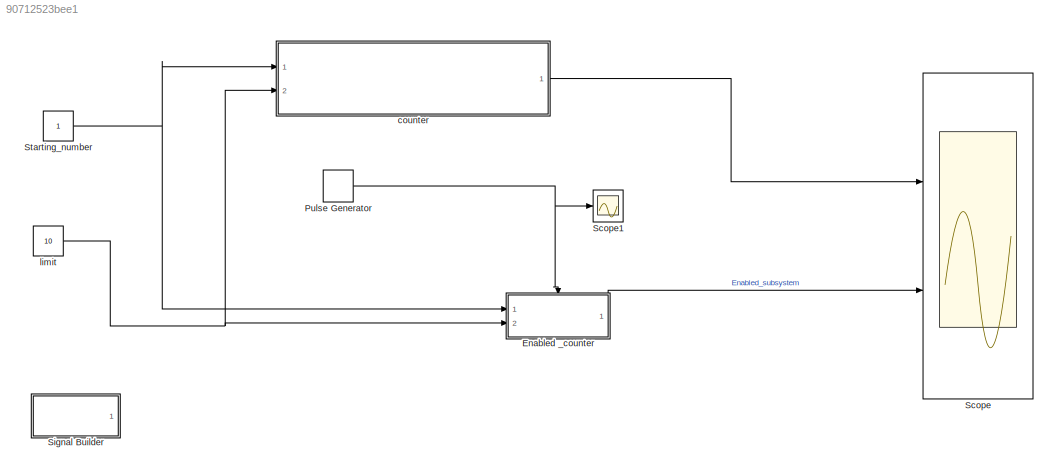
MODEL slx_90712523bee1
KIND model
CONFIG AbsTol = auto
CONFIG EnableMultiTasking = off
CONFIG FixedStep = auto
CONFIG MaxStep = auto
CONFIG MinStep = auto
CONFIG RelTol = 1e-3
CONFIG SampleTimeConstraint = Unconstrained
CONFIG SolverName = VariableStepAuto
CONFIG StartTime = 0.0
CONFIG StopTime = 10
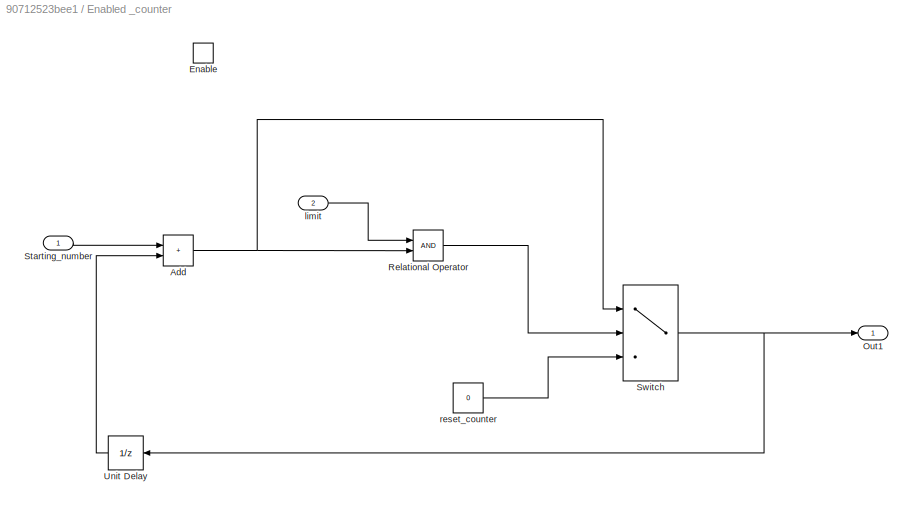
BLOCK [SubSystem] Enabled _counter
  Ports = [2, 1, 1]
  RequestExecContextInheritance = off
  TreatAsAtomicUnit = on
BLOCK [Sum] Enabled _counter/Add
  IconShape = rectangular
  Ports = [2, 1]
BLOCK [EnablePort] Enabled _counter/Enable
  Ports = []
BLOCK [Outport] Enabled _counter/Out1
BLOCK [RelationalOperator] Enabled _counter/Relational Operator
  InputSameDT = off
  OutDataTypeStr = boolean
  Ports = [2, 1]
  RndMeth = Simplest
BLOCK [Inport] Enabled _counter/Starting_number
BLOCK [Switch] Enabled _counter/Switch
  Criteria = u2 ~= 0
  InputSameDT = off
  SaturateOnIntegerOverflow = off
BLOCK [UnitDelay] Enabled _counter/Unit Delay
  HasFrameUpgradeWarning = on
  NameLocation = top
  SampleTime = -1
BLOCK [Inport] Enabled _counter/limit
  Port = 2
BLOCK [Constant] Enabled _counter/reset_counter
  Value = 0
BLOCK [DiscretePulseGenerator] Pulse Generator
  Period = 0.1
  Ports = [0, 1]
  PulseType = Time based
  PulseWidth = 50
BLOCK [Scope] Scope
  Floating = off
  NumInputPorts = 2
  Ports = [2]
  ScopeSpecificationString = Simulink.scopes.TimeScopeBlockCfg('CurrentConfiguration', extmgr.ConfigurationSet(extmgr.Configuration('Core','General UI',true),extmgr.Configuration('Core','Source UI',true),extmgr.Configuration('Sources','WiredSimulink',true),extmgr.Configuration('Visuals','Time Domain',true,'SerializedDisplays',{struct('MinYLimReal','-1.25','MaxYLimReal','11.25','YLabelReal','','MinYLimMag','0.00000','MaxYLimMa...<+1966ch>
BLOCK [Scope] Scope1
  Floating = off
  NumInputPorts = 1
  Ports = [1]
  ScopeSpecificationString = Simulink.scopes.TimeScopeBlockCfg('CurrentConfiguration', extmgr.ConfigurationSet(extmgr.Configuration('Core','General UI',true),extmgr.Configuration('Core','Source UI',true),extmgr.Configuration('Sources','WiredSimulink',true,'DataLoggingVariableName','ScopeData1'),extmgr.Configuration('Visuals','Time Domain',true,'SerializedDisplays',{struct('MinYLimReal','-0.125','MaxYLimReal','1.125','YLabelRe...<+1435ch>
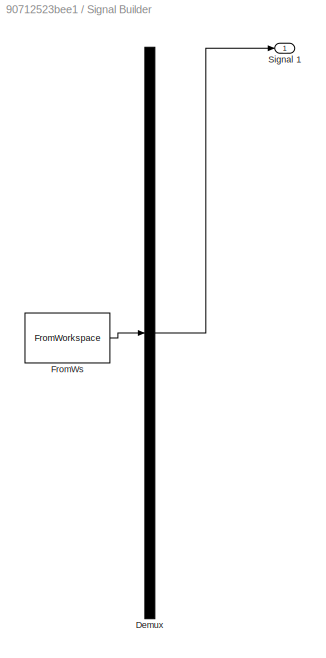
BLOCK [SubSystem] Signal Builder
  ClipboardFcn = sigbuilder_block('clipboard');
  CloseFcn = sigbuilder_block('close');
  Commented = on
  ContinueFcn = sigbuilder_block('continue');
  CopyFcn = sigbuilder_block('copy');
  DeleteFcn = sigbuilder_block('delete');
  LoadFcn = sigbuilder_block('load');
  MaskHideContents = on
  ModelCloseFcn = sigbuilder_block('modelClose');
  NameChangeFcn = sigbuilder_block('namechange');
  OpenFcn = sigbuilder_block('open',[437.6 199.2 550.4 400 ]);
  PauseFcn = sigbuilder_block('pause');
  Ports = [0, 1]
  PreSaveFcn = sigbuilder_block('preSave');
  RequestExecContextInheritance = off
  StartFcn = sigbuilder_block('start');
  StopFcn = sigbuilder_block('stop');
  Tag = STV Subsys
BLOCK [Demux] Signal Builder/Demux
  DisplayOption = none
  Outputs = 1
  Ports = [1, 1]
  Tag = STV Demux
BLOCK [FromWorkspace] Signal Builder/FromWs
  Tag = STV FromWs
  VariableName = tuvar
BLOCK [Outport] Signal Builder/Signal 1
  Tag = STV Outport
BLOCK [Constant] Starting_number
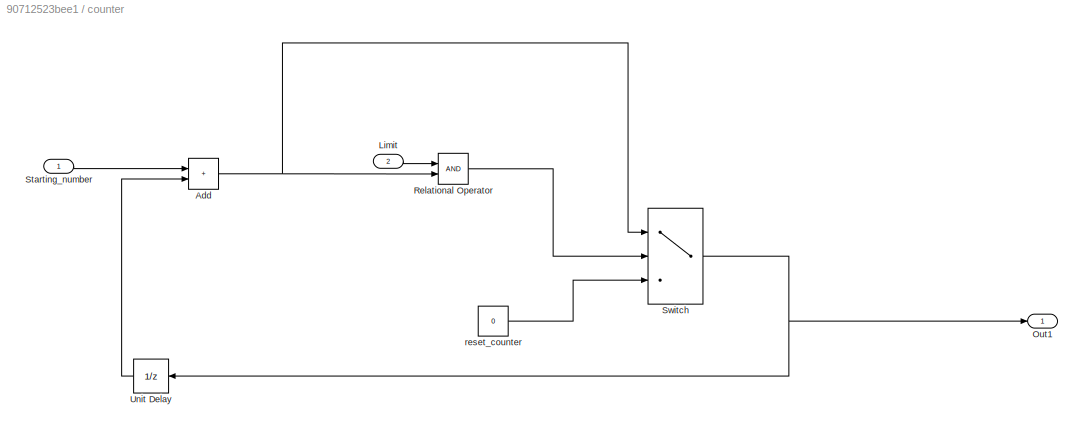
BLOCK [SubSystem] counter
  Ports = [2, 1]
  RequestExecContextInheritance = off
BLOCK [Sum] counter/Add
  IconShape = rectangular
  Ports = [2, 1]
BLOCK [Inport] counter/Limit
  NameLocation = top
  Port = 2
BLOCK [Outport] counter/Out1
BLOCK [RelationalOperator] counter/Relational Operator
  InputSameDT = off
  OutDataTypeStr = boolean
  Ports = [2, 1]
  RndMeth = Simplest
BLOCK [Inport] counter/Starting_number
BLOCK [Switch] counter/Switch
  Criteria = u2 ~= 0
  InputSameDT = off
  SaturateOnIntegerOverflow = off
BLOCK [UnitDelay] counter/Unit Delay
  HasFrameUpgradeWarning = on
  NameLocation = top
  SampleTime = -1
BLOCK [Constant] counter/reset_counter
  Value = 0
BLOCK [Constant] limit
  Value = 10
NET Enabled _counter/Add:1 -> Enabled _counter/Relational Operator:2, Enabled _counter/Switch:1
LINE Enabled _counter/Relational Operator:1 -> Enabled _counter/Switch:2
LINE Enabled _counter/Starting_number:1 -> Enabled _counter/Add:1
NET Enabled _counter/Switch:1 -> Enabled _counter/Out1:1, Enabled _counter/Unit Delay:1
LINE Enabled _counter/Unit Delay:1 -> Enabled _counter/Add:2
LINE Enabled _counter/limit:1 -> Enabled _counter/Relational Operator:1
LINE Enabled _counter/reset_counter:1 -> Enabled _counter/Switch:3
LINE Enabled _counter:1 -> Scope:2
NET Pulse Generator:1 -> Enabled _counter:enable, Scope1:1
NET Starting_number:1 -> Enabled _counter:1, counter:1
NET counter/Add:1 -> counter/Relational Operator:2, counter/Switch:1
LINE counter/Limit:1 -> counter/Relational Operator:1
LINE counter/Relational Operator:1 -> counter/Switch:2
LINE counter/Starting_number:1 -> counter/Add:1
NET counter/Switch:1 -> counter/Out1:1, counter/Unit Delay:1
LINE counter/Unit Delay:1 -> counter/Add:2
LINE counter/reset_counter:1 -> counter/Switch:3
LINE counter:1 -> Scope:1
NET limit:1 -> Enabled _counter:2, counter:2
note: NET lines group one-source signal fan-out (src -> all destinations, sorted); 1:1 wires keep LINE
